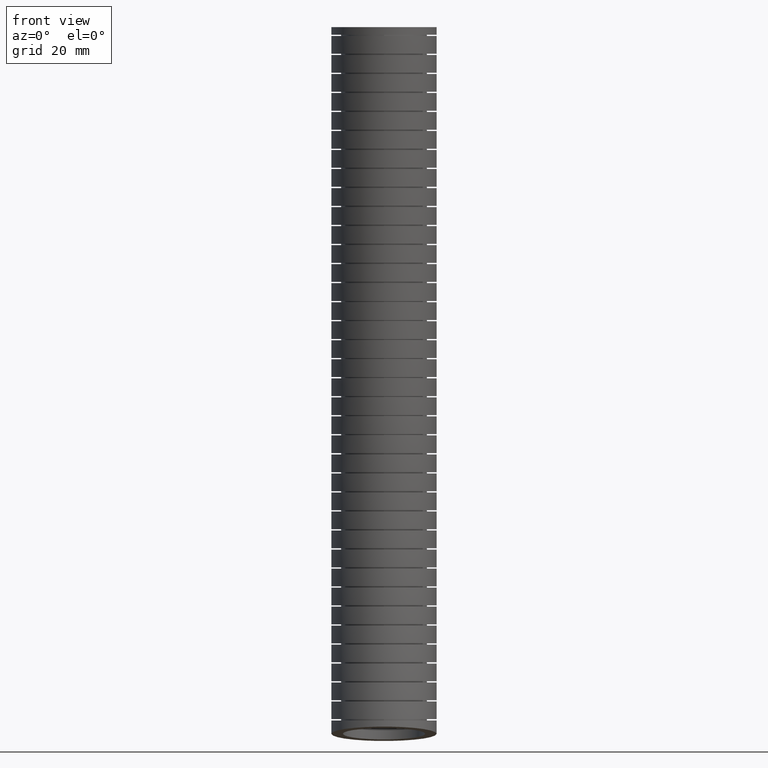
[diagram: clean part render]
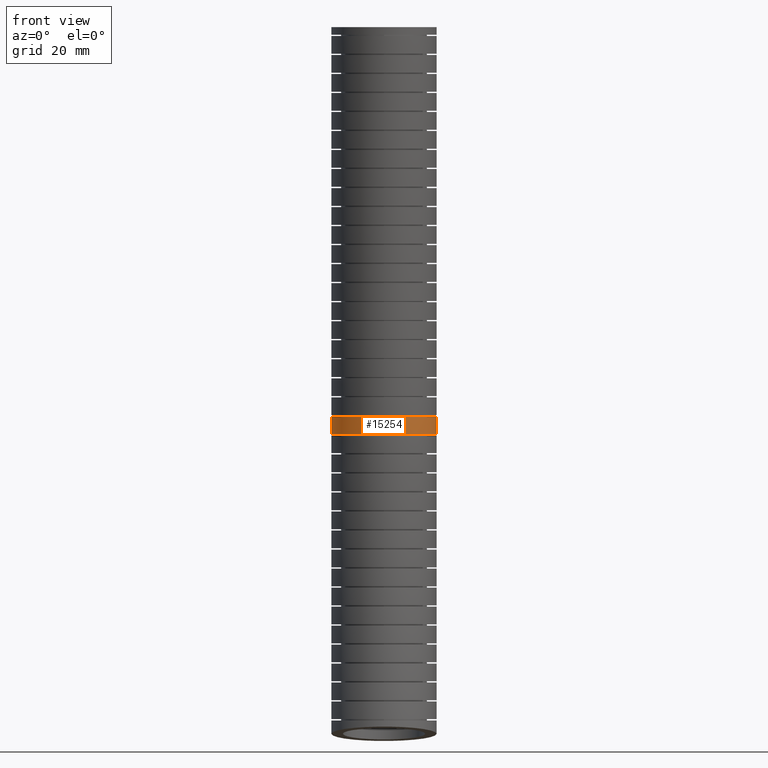
[diagram: same view with one face highlighted and labeled with its STEP entity id]
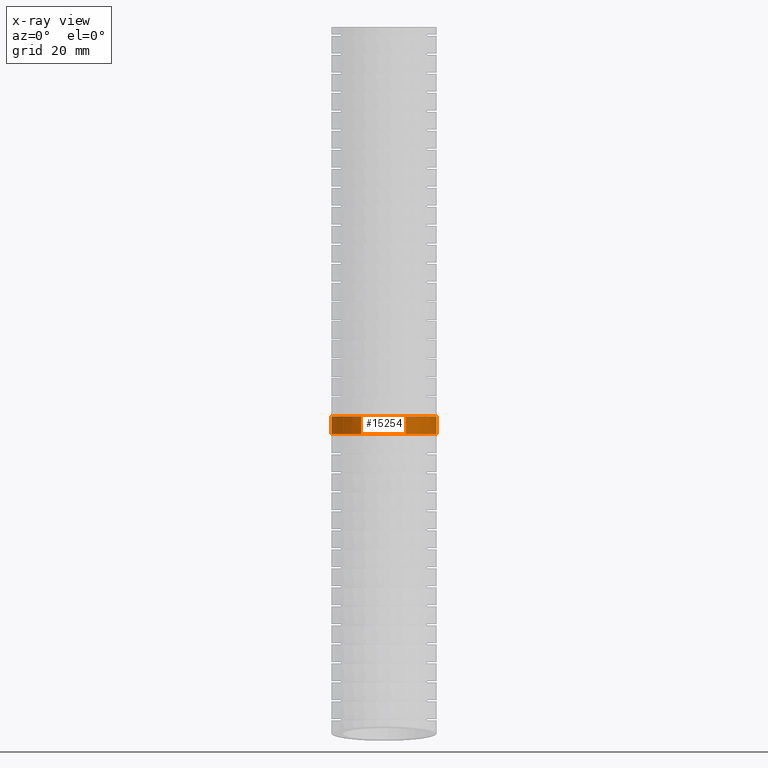
[diagram: x-ray of the same camera — body ghosted, the highlighted face saturated]
A machine part, front view. The second image highlights one B-rep face of the part: STEP entity #15254.
The next image is the same camera in x-ray: the body ghosted, the highlighted face saturated — about 0% of this face is hidden behind the body in this view.
In plain terms, the highlighted face is a freeform B-spline surface patch.
Its self-contained STEP definition (entity closure, byte-faithful):
#640 = EDGE_CURVE ( 'NONE', #646, #647, #2568, .T. ) ;
#645 = ORIENTED_EDGE ( 'NONE', *, *, #15370, .T. ) ;
#646 = VERTEX_POINT ( 'NONE', #2691 ) ;
#647 = VERTEX_POINT ( 'NONE', #2700 ) ;
#2047 = CARTESIAN_POINT ( 'NONE',  ( 0.1330802492527675100, -0.3029395892548170100, -3.068435231609830000 ) ) ;
#2049 = CARTESIAN_POINT ( 'NONE',  ( 0.1837244516612469300, -0.2820469987927504700, -3.068435231609829100 ) ) ;
#2050 = CARTESIAN_POINT ( 'NONE',  ( 0.2076254065518568200, -0.2692801823640682000, -3.068435231609828700 ) ) ;
#2149 = ORIENTED_EDGE ( 'NONE', *, *, #640, .T. ) ;
#2534 = CARTESIAN_POINT ( 'NONE',  ( 0.2413661071648197900, -0.2468206840582521700, -3.068435231609829100 ) ) ;
#2536 = CARTESIAN_POINT ( 'NONE',  ( 0.2522624476290152300, -0.2387769526700455100, -3.068435231609826500 ) ) ;
#2538 = CARTESIAN_POINT ( 'NONE',  ( 0.2733381939563606600, -0.2215498870752172500, -3.068435231609826500 ) ) ;
#2539 = CARTESIAN_POINT ( 'NONE',  ( 0.2835457374649481000, -0.2123291638639151200, -3.068435231609826500 ) ) ;
#2541 = CARTESIAN_POINT ( 'NONE',  ( 0.3124279788709784500, -0.1835302927604853500, -3.068435231609827800 ) ) ;
#2543 = CARTESIAN_POINT ( 'NONE',  ( 0.3295969944154179000, -0.1626710991587972100, -3.068435231609827800 ) ) ;
#2545 = CARTESIAN_POINT ( 'NONE',  ( 0.3522507878713771500, -0.1289154590811915600, -3.068435231609827300 ) ) ;
#2547 = CARTESIAN_POINT ( 'NONE',  ( 0.3593020387909272600, -0.1172112730831917200, -3.068435231609826500 ) ) ;
#2548 = CARTESIAN_POINT ( 'NONE',  ( 0.3722334024554254100, -0.09311053383704802300, -3.068435231609826000 ) ) ;
#2550 = CARTESIAN_POINT ( 'NONE',  ( 0.3780534770481490100, -0.08083543163736398000, -3.068435231609827800 ) ) ;
#2552 = CARTESIAN_POINT ( 'NONE',  ( 0.3936376879701454800, -0.04335709456232861300, -3.068435231609829100 ) ) ;
#2554 = CARTESIAN_POINT ( 'NONE',  ( 0.4015435704669486600, -0.01750701103627695000, -3.068435231609827300 ) ) ;
#2556 = CARTESIAN_POINT ( 'NONE',  ( 0.4095892118476546200, 0.02259546352245408000, -3.068435231609827300 ) ) ;
#2558 = CARTESIAN_POINT ( 'NONE',  ( 0.4116229635089063700, 0.03618338223433939500, -3.068435231609823800 ) ) ;
#2560 = CARTESIAN_POINT ( 'NONE',  ( 0.4143218879108952500, 0.06335964641981034500, -3.068435231609825600 ) ) ;
#2561 = CARTESIAN_POINT ( 'NONE',  ( 0.4149999999999998700, 0.07700373118290888800, -3.068435231417771200 ) ) ;
#2563 = CARTESIAN_POINT ( 'NONE',  ( 0.4150000000000000400, 0.09070433218324203100, -3.068435231417771200 ) ) ;
#2568 = B_SPLINE_CURVE_WITH_KNOTS ( 'NONE', 3,
 ( #2563, #2561, #2560, #2558, #2556, #2554, #2552, #2550, #2548, #2547, #2545, #2543, #2541, #2539, #2538, #2536, #2534, #2050, #2049, #2047, #2684, #2682, #2680, #2678, #2677, #2675, #2674, #2672, #2670, #2668, #2667, #2665, #2664, #2663, #2661, #2659, #2657, #2655, #2654, #2652, #2650, #2648, #2646, #2645, #2643, #2641, #2640, #2639, #2637 ),
 .UNSPECIFIED., .F., .F.,
 ( 4, 2, 2, 2, 2, 2, 2, 2, 2, 2, 2, 2, 2, 2, 2, 2, 2, 2, 1, 2, 2, 2, 2, 2, 4 ),
 ( 0.0000000000000000000, 0.001040378741193470300, 0.002080757482386940600, 0.004161514964773882100, 0.005201893705967353100, 0.006242272447160824100, 0.008323029929547764300, 0.009363408670741235300, 0.01040378741193470500, 0.01248454489432164800, 0.01456530237670858800, 0.01560568111790205900, 0.01664605985909552900, 0.01872681734148247100, 0.01976719608267594000, 0.02080757482386940900, 0.02288833230625635100, 0.02392871104744982000, 0.02496908978864329300, 0.02600946852983676200, 0.02704984727103023100, 0.02913060475341717300, 0.03017098349461064300, 0.03121136223580411200, 0.03329211971819105000 ),
 .UNSPECIFIED. ) ;
#2637 = CARTESIAN_POINT ( 'NONE',  ( -0.4150000000000000400, 0.09070433218277164400, -3.068435231609826500 ) ) ;
#2639 = CARTESIAN_POINT ( 'NONE',  ( -0.4149999999999999200, 0.06353501029206740100, -3.068435231609826000 ) ) ;
#2640 = CARTESIAN_POINT ( 'NONE',  ( -0.4123522441244589800, 0.03665197155372243400, -3.068435231609827300 ) ) ;
#2641 = CARTESIAN_POINT ( 'NONE',  ( -0.4044320176750820200, -0.003245653105105445900, -3.068435231609827300 ) ) ;
#2643 = CARTESIAN_POINT ( 'NONE',  ( -0.4011105824868447800, -0.01653208127891582800, -3.068435231609825600 ) ) ;
#2645 = CARTESIAN_POINT ( 'NONE',  ( -0.3931753454785357200, -0.04267512802754117700, -3.068435231609825600 ) ) ;
#2646 = CARTESIAN_POINT ( 'NONE',  ( -0.3885925485572106500, -0.05545301992961530800, -3.068435231609825600 ) ) ;
#2648 = CARTESIAN_POINT ( 'NONE',  ( -0.3730535957146975900, -0.09293204052347083000, -3.068435231609826500 ) ) ;
#2650 = CARTESIAN_POINT ( 'NONE',  ( -0.3603239288974688900, -0.1167866528211487600, -3.068435231609823300 ) ) ;
#2652 = CARTESIAN_POINT ( 'NONE',  ( -0.3375783026742067400, -0.1508258483891877800, -3.068435231609823800 ) ) ;
#2654 = CARTESIAN_POINT ( 'NONE',  ( -0.3293993076850434400, -0.1618406680832771300, -3.068435231609826500 ) ) ;
#2655 = CARTESIAN_POINT ( 'NONE',  ( -0.3121742016726828400, -0.1828063756785877100, -3.068435231609827300 ) ) ;
#2657 = CARTESIAN_POINT ( 'NONE',  ( -0.2940032207975771800, -0.2028306715721994700, -3.068435231609826500 ) ) ;
#2659 = CARTESIAN_POINT ( 'NONE',  ( -0.2739666390967485100, -0.2209981695772013400, -3.068435231609828700 ) ) ;
#2661 = CARTESIAN_POINT ( 'NONE',  ( -0.2529833139437365800, -0.2382233913895517900, -3.068435231609828700 ) ) ;
#2663 = CARTESIAN_POINT ( 'NONE',  ( -0.2419534244319628800, -0.2464058137945091800, -3.068435231609827800 ) ) ;
#2664 = CARTESIAN_POINT ( 'NONE',  ( -0.2079314501390296400, -0.2691227817268244100, -3.068435231609827300 ) ) ;
#2665 = CARTESIAN_POINT ( 'NONE',  ( -0.1840805432861294700, -0.2818470549942366800, -3.068435231609826000 ) ) ;
#2667 = CARTESIAN_POINT ( 'NONE',  ( -0.1465922815607620100, -0.2973908251390161000, -3.068435231609825600 ) ) ;
#2668 = CARTESIAN_POINT ( 'NONE',  ( -0.1338088353014851600, -0.3019774159156297100, -3.068435231609825600 ) ) ;
#2670 = CARTESIAN_POINT ( 'NONE',  ( -0.1076490026866928600, -0.3099235565297001100, -3.068435231609825100 ) ) ;
#2672 = CARTESIAN_POINT ( 'NONE',  ( -0.09438316581879437100, -0.3132439704936175200, -3.068435231609827800 ) ) ;
#2674 = CARTESIAN_POINT ( 'NONE',  ( -0.05450538128426429100, -0.3211810795998162300, -3.068435231609828200 ) ) ;
#2675 = CARTESIAN_POINT ( 'NONE',  ( -0.02762355965686172700, -0.3238518982729181000, -3.068435231609826500 ) ) ;
#2677 = CARTESIAN_POINT ( 'NONE',  ( 0.01314773141406262400, -0.3238953463423052700, -3.068435231609825600 ) ) ;
#2678 = CARTESIAN_POINT ( 'NONE',  ( 0.02688461339307669400, -0.3232337981930267200, -3.068435231609827800 ) ) ;
#2680 = CARTESIAN_POINT ( 'NONE',  ( 0.05398677263137857700, -0.3205831777550127200, -3.068435231609826500 ) ) ;
#2682 = CARTESIAN_POINT ( 'NONE',  ( 0.06738799586837618300, -0.3186015790338492800, -3.068435231609826500 ) ) ;
#2684 = CARTESIAN_POINT ( 'NONE',  ( 0.1071522739350972100, -0.3107324892237667300, -3.068435231609827800 ) ) ;
#2691 = CARTESIAN_POINT ( 'NONE',  ( 0.4150000000000000400, 0.09070433218324203100, -3.068435231417771200 ) ) ;
#2700 = CARTESIAN_POINT ( 'NONE',  ( -0.4150000000000000400, 0.09070433218277164400, -3.068435231609826500 ) ) ;
#15253 = EDGE_LOOP ( 'NONE', ( #2149, #645, #15330, #15271 ) ) ;
#15254 = ADVANCED_FACE ( 'NONE', ( #16274 ), #16314, .T. ) ;
#15271 = ORIENTED_EDGE ( 'NONE', *, *, #15272, .F. ) ;
#15272 = EDGE_CURVE ( 'NONE', #646, #15273, #16554, .T. ) ;
#15273 = VERTEX_POINT ( 'NONE', #16553 ) ;
#15318 = VERTEX_POINT ( 'NONE', #16625 ) ;
#15330 = ORIENTED_EDGE ( 'NONE', *, *, #15456, .T. ) ;
#15370 = EDGE_CURVE ( 'NONE', #647, #15318, #16650, .T. ) ;
#15456 = EDGE_CURVE ( 'NONE', #15318, #15273, #16643, .T. ) ;
#16274 = FACE_OUTER_BOUND ( 'NONE', #15253, .T. ) ;
#16314 =( BOUNDED_SURFACE ( )  B_SPLINE_SURFACE ( 3, 3, ( 
 ( #16353, #16352, #16351, #16350, #16349, #16348 ),
 ( #16347, #16346, #16345, #16344, #16343, #16342 ),
 ( #16341, #16340, #16339, #16338, #16337, #16336 ),
 ( #16335, #16334, #16333, #16332, #16331, #16330 ),
 ( #16329, #16328, #16327, #16326, #16325, #16324 ),
 ( #16323, #16387, #16386, #16385, #16384, #16383 ),
 ( #16382, #16381, #16380, #16379, #16378, #16377 ) ),
 .UNSPECIFIED., .F., .F., .F. ) 
 B_SPLINE_SURFACE_WITH_KNOTS ( ( 4, 3, 4 ),
 ( 4, 1, 1, 4 ),
 ( 0.0000000000000000000, 0.5000000000000000000, 1.000000000000000000 ),
 ( 0.0000000000000000000, 0.5600000000000000500, 0.8973141982067990300, 1.000000000000000000 ),
 .UNSPECIFIED. ) 
 GEOMETRIC_REPRESENTATION_ITEM ( )  RATIONAL_B_SPLINE_SURFACE ( (
 ( 1.000000000000000000, 1.000000000000000000, 1.000000000000000000, 1.000000000000000000, 1.000000000000000000, 1.000000000000000000),
 ( 0.3333333333333333100, 0.3333333333333333100, 0.3333333333333333100, 0.3333333333333333100, 0.3333333333333332600, 0.3333333333333333100),
 ( 0.3333333333333333100, 0.3333333333333333100, 0.3333333333333333100, 0.3333333333333333100, 0.3333333333333332600, 0.3333333333333333100),
 ( 1.000000000000000000, 1.000000000000000000, 1.000000000000000000, 1.000000000000000000, 1.000000000000000000, 1.000000000000000000),
 ( 0.3333333333333333100, 0.3333333333333333100, 0.3333333333333333100, 0.3333333333333333100, 0.3333333333333332600, 0.3333333333333333100),
 ( 0.3333333333333333100, 0.3333333333333333100, 0.3333333333333333100, 0.3333333333333333100, 0.3333333333333332600, 0.3333333333333333100),
 ( 1.000000000000000000, 1.000000000000000000, 1.000000000000000000, 1.000000000000000000, 1.000000000000000000, 1.000000000000000000) ) ) 
 REPRESENTATION_ITEM ( '' )  SURFACE ( )  );
#16323 = CARTESIAN_POINT ( 'NONE',  ( 0.4150000000000000900, 0.8300000000000001800, 0.0000000000000000000 ) ) ;
#16324 = CARTESIAN_POINT ( 'NONE',  ( -0.4149999999999999200, 0.7922141346493595200, -5.683419208173947200 ) ) ;
#16325 = CARTESIAN_POINT ( 'NONE',  ( -0.4150000000000000400, 0.8104118928973711400, -5.486989566509566700 ) ) ;
#16326 = CARTESIAN_POINT ( 'NONE',  ( -0.4149999999999999200, 0.8883877521622221000, -4.645305119166129900 ) ) ;
#16327 = CARTESIAN_POINT ( 'NONE',  ( -0.4149999999999999200, 0.9528682252578860600, -2.732677208711230800 ) ) ;
#16328 = CARTESIAN_POINT ( 'NONE',  ( -0.4149999999999999200, 0.8772143935941071300, -1.050081882658727000 ) ) ;
#16329 = CARTESIAN_POINT ( 'NONE',  ( -0.4150000000000000400, 0.8300000000000001800, 0.0000000000000000000 ) ) ;
#16330 = CARTESIAN_POINT ( 'NONE',  ( -0.4150000000000000400, -0.02999999999999996800, -5.569999999999998500 ) ) ;
#16331 = CARTESIAN_POINT ( 'NONE',  ( -0.4150000000000000900, -0.01243844818931298000, -5.380037381098891700 ) ) ;
#16332 = CARTESIAN_POINT ( 'NONE',  ( -0.4150000000000000900, 0.06281132015026594200, -4.566063580857106200 ) ) ;
#16333 = CARTESIAN_POINT ( 'NONE',  ( -0.4149999999999999200, 0.1218071073635320100, -2.711443563840852700 ) ) ;
#16334 = CARTESIAN_POINT ( 'NONE',  ( -0.4150000000000000900, 0.04680663936954139500, -1.041922460934817000 ) ) ;
#16335 = CARTESIAN_POINT ( 'NONE',  ( -0.4150000000000000900, 5.082284216461516900E-017, 0.0000000000000000000 ) ) ;
#16336 = CARTESIAN_POINT ( 'NONE',  ( -0.4150000000000000900, -0.8522141346493592500, -5.456580791826050700 ) ) ;
#16337 = CARTESIAN_POINT ( 'NONE',  ( -0.4150000000000002000, -0.8352887892759974800, -5.273085195688222100 ) ) ;
#16338 = CARTESIAN_POINT ( 'NONE',  ( -0.4150000000000000900, -0.7627651118616902700, -4.486822042548080700 ) ) ;
#16339 = CARTESIAN_POINT ( 'NONE',  ( -0.4150000000000000400, -0.7092540105308221500, -2.690209918970475100 ) ) ;
#16340 = CARTESIAN_POINT ( 'NONE',  ( -0.4150000000000000900, -0.7836011148550242600, -1.033763039210906500 ) ) ;
#16341 = CARTESIAN_POINT ( 'NONE',  ( -0.4150000000000000900, -0.8300000000000001800, 0.0000000000000000000 ) ) ;
#16342 = CARTESIAN_POINT ( 'NONE',  ( 0.4150000000000000400, -0.8522141346493592500, -5.456580791826050700 ) ) ;
#16343 = CARTESIAN_POINT ( 'NONE',  ( 0.4150000000000002000, -0.8352887892759974800, -5.273085195688222100 ) ) ;
#16344 = CARTESIAN_POINT ( 'NONE',  ( 0.4150000000000000400, -0.7627651118616902700, -4.486822042548080700 ) ) ;
#16345 = CARTESIAN_POINT ( 'NONE',  ( 0.4150000000000000400, -0.7092540105308221500, -2.690209918970475100 ) ) ;
#16346 = CARTESIAN_POINT ( 'NONE',  ( 0.4150000000000000900, -0.7836011148550242600, -1.033763039210906500 ) ) ;
#16347 = CARTESIAN_POINT ( 'NONE',  ( 0.4150000000000000900, -0.8300000000000001800, 0.0000000000000000000 ) ) ;
#16348 = CARTESIAN_POINT ( 'NONE',  ( 0.4150000000000000400, -0.03000000000000001600, -5.569999999999998500 ) ) ;
#16349 = CARTESIAN_POINT ( 'NONE',  ( 0.4150000000000000900, -0.01243844818931303500, -5.380037381098891700 ) ) ;
#16350 = CARTESIAN_POINT ( 'NONE',  ( 0.4150000000000000900, 0.06281132015026588700, -4.566063580857106200 ) ) ;
#16351 = CARTESIAN_POINT ( 'NONE',  ( 0.4149999999999999200, 0.1218071073635319700, -2.711443563840852700 ) ) ;
#16352 = CARTESIAN_POINT ( 'NONE',  ( 0.4150000000000000900, 0.04680663936954134600, -1.041922460934817000 ) ) ;
#16353 = CARTESIAN_POINT ( 'NONE',  ( 0.4150000000000000900, 0.0000000000000000000, 0.0000000000000000000 ) ) ;
#16377 = CARTESIAN_POINT ( 'NONE',  ( 0.4150000000000000400, -0.03000000000000001600, -5.569999999999998500 ) ) ;
#16378 = CARTESIAN_POINT ( 'NONE',  ( 0.4150000000000000900, -0.01243844818931303500, -5.380037381098891700 ) ) ;
#16379 = CARTESIAN_POINT ( 'NONE',  ( 0.4150000000000000900, 0.06281132015026588700, -4.566063580857106200 ) ) ;
#16380 = CARTESIAN_POINT ( 'NONE',  ( 0.4149999999999999200, 0.1218071073635319700, -2.711443563840852700 ) ) ;
#16381 = CARTESIAN_POINT ( 'NONE',  ( 0.4150000000000000900, 0.04680663936954134600, -1.041922460934817000 ) ) ;
#16382 = CARTESIAN_POINT ( 'NONE',  ( 0.4150000000000000900, 0.0000000000000000000, 0.0000000000000000000 ) ) ;
#16383 = CARTESIAN_POINT ( 'NONE',  ( 0.4150000000000000400, 0.7922141346493595200, -5.683419208173947200 ) ) ;
#16384 = CARTESIAN_POINT ( 'NONE',  ( 0.4150000000000002000, 0.8104118928973711400, -5.486989566509566700 ) ) ;
#16385 = CARTESIAN_POINT ( 'NONE',  ( 0.4150000000000000400, 0.8883877521622221000, -4.645305119166129900 ) ) ;
#16386 = CARTESIAN_POINT ( 'NONE',  ( 0.4150000000000000400, 0.9528682252578860600, -2.732677208711230800 ) ) ;
#16387 = CARTESIAN_POINT ( 'NONE',  ( 0.4150000000000000900, 0.8772143935941071300, -1.050081882658727000 ) ) ;
#16553 = CARTESIAN_POINT ( 'NONE',  ( 0.4150000000000000900, 0.09023260069168807800, -3.208434248761313300 ) ) ;
#16554 = B_SPLINE_CURVE_WITH_KNOTS ( 'NONE', 3,
 ( #16632, #16631, #16630, #16629, #16628 ),
 .UNSPECIFIED., .F., .F.,
 ( 4, 1, 4 ),
 ( 0.5500820456786192900, 0.5600000000000000500, 0.5752144025297359900 ),
 .UNSPECIFIED. ) ;
#16625 = CARTESIAN_POINT ( 'NONE',  ( -0.4150000000000000400, 0.09023260069370794800, -3.208434248579250100 ) ) ;
#16628 = CARTESIAN_POINT ( 'NONE',  ( 0.4150000000000000900, 0.09023260069168807800, -3.208434248761313300 ) ) ;
#16629 = CARTESIAN_POINT ( 'NONE',  ( 0.4150000000000000400, 0.09038929076641019600, -3.180186364628423900 ) ) ;
#16630 = CARTESIAN_POINT ( 'NONE',  ( 0.4150000000000000400, 0.09058571574000290300, -3.133521662186735700 ) ) ;
#16631 = CARTESIAN_POINT ( 'NONE',  ( 0.4150000000000000400, 0.09068177677903058200, -3.086852767347634300 ) ) ;
#16632 = CARTESIAN_POINT ( 'NONE',  ( 0.4150000000000000400, 0.09070433218324203100, -3.068435231417771200 ) ) ;
#16633 = CARTESIAN_POINT ( 'NONE',  ( -0.3526593792986693600, -0.1287231873330266200, -3.208434248579249200 ) ) ;
#16634 = CARTESIAN_POINT ( 'NONE',  ( -0.3597018044858356100, -0.1169701533302967800, -3.208434248579250100 ) ) ;
#16635 = CARTESIAN_POINT ( 'NONE',  ( -0.3724852163480661400, -0.09305130962682667300, -3.208434248579249200 ) ) ;
#16636 = CARTESIAN_POINT ( 'NONE',  ( -0.3840409701677342000, -0.06861215218029846600, -3.208434248579247900 ) ) ;
#16637 = CARTESIAN_POINT ( 'NONE',  ( -0.3931702871499146400, -0.04314460703178926700, -3.208434248579252700 ) ) ;
#16638 = CARTESIAN_POINT ( 'NONE',  ( -0.4010656678384512700, -0.01715408725241233300, -3.208434248579252700 ) ) ;
#16639 = CARTESIAN_POINT ( 'NONE',  ( -0.4044085035609292800, -0.003821578909843728100, -3.208434248579248700 ) ) ;
#16640 = CARTESIAN_POINT ( 'NONE',  ( -0.4123723302200944500, 0.03626954509264020800, -3.208434248579251000 ) ) ;
#16641 = CARTESIAN_POINT ( 'NONE',  ( -0.4150000000000000900, 0.06316751120281642600, -3.208434248579248300 ) ) ;
#16642 = CARTESIAN_POINT ( 'NONE',  ( -0.4150000000000000400, 0.09023260069370794800, -3.208434248579250100 ) ) ;
#16643 = B_SPLINE_CURVE_WITH_KNOTS ( 'NONE', 3,
 ( #16642, #16641, #16640, #16639, #16638, #16637, #16636, #16635, #16634, #16633, #16710, #16709, #16708, #16707, #16706, #16705, #16704, #16703, #16702, #16701, #16700, #16699, #16698, #16697, #16696, #16695, #16694, #16693, #16692, #16691, #16690, #16689, #16688, #16687, #16686, #16685, #16684, #16683, #16682, #16681, #16680, #16679, #16678, #16677, #16676 ),
 .UNSPECIFIED., .F., .F.,
 ( 4, 2, 2, 1, 2, 2, 2, 2, 2, 2, 2, 2, 2, 2, 2, 2, 2, 2, 2, 2, 2, 2, 4 ),
 ( 0.03293945732616998500, 0.03499766285383396800, 0.03602676561766596200, 0.03705586838149795700, 0.03808497114532995200, 0.03911407390916194600, 0.04117227943682592900, 0.04220138220065791600, 0.04323048496448991100, 0.04528869049215389400, 0.04631779325598588100, 0.04734689601981787600, 0.04940510154748185800, 0.05146330707514583400, 0.05249240983897782200, 0.05352151260280981600, 0.05557971813047379200, 0.05763792365813777400, 0.05969612918580175000, 0.06072523194963373700, 0.06175433471346572500, 0.06381254024112970000, 0.06587074576879369000 ),
 .UNSPECIFIED. ) ;
#16644 = CARTESIAN_POINT ( 'NONE',  ( -0.4150000000000000400, 0.09023260069370794800, -3.208434248579250100 ) ) ;
#16645 = CARTESIAN_POINT ( 'NONE',  ( -0.4150000000000000400, 0.09038929076692116300, -3.180186364507037400 ) ) ;
#16646 = CARTESIAN_POINT ( 'NONE',  ( -0.4150000000000000400, 0.09058571573985843600, -3.133521662190047700 ) ) ;
#16647 = CARTESIAN_POINT ( 'NONE',  ( -0.4150000000000000400, 0.09068177677876707000, -3.086852767475666500 ) ) ;
#16648 = CARTESIAN_POINT ( 'NONE',  ( -0.4150000000000000400, 0.09070433218277164400, -3.068435231609826500 ) ) ;
#16650 = B_SPLINE_CURVE_WITH_KNOTS ( 'NONE', 3,
 ( #16648, #16647, #16646, #16645, #16644 ),
 .UNSPECIFIED., .F., .F.,
 ( 4, 1, 4 ),
 ( 0.5500820457130937100, 0.5600000000000000500, 0.5752144024970482500 ),
 .UNSPECIFIED. ) ;
#16676 = CARTESIAN_POINT ( 'NONE',  ( 0.4150000000000000900, 0.09023260069168807800, -3.208434248761313300 ) ) ;
#16677 = CARTESIAN_POINT ( 'NONE',  ( 0.4150000000000000900, 0.06283295708705501100, -3.208434248761313300 ) ) ;
#16678 = CARTESIAN_POINT ( 'NONE',  ( 0.4123072488638439000, 0.03571784390038014500, -3.208434248579250500 ) ) ;
#16679 = CARTESIAN_POINT ( 'NONE',  ( 0.4015572491071871000, -0.01794561389814307300, -3.208434248579251000 ) ) ;
#16680 = CARTESIAN_POINT ( 'NONE',  ( 0.3935932253210483500, -0.04394074481165722400, -3.208434248579250500 ) ) ;
#16681 = CARTESIAN_POINT ( 'NONE',  ( 0.3780273823635270600, -0.08135093113415560500, -3.208434248579250100 ) ) ;
#16682 = CARTESIAN_POINT ( 'NONE',  ( 0.3722266967242904800, -0.09357695585036268600, -3.208434248579248300 ) ) ;
#16683 = CARTESIAN_POINT ( 'NONE',  ( 0.3593781985494804400, -0.1175317665061560900, -3.208434248579248700 ) ) ;
#16684 = CARTESIAN_POINT ( 'NONE',  ( 0.3522876671594581400, -0.1293168033831303400, -3.208434248579250500 ) ) ;
#16685 = CARTESIAN_POINT ( 'NONE',  ( 0.3295296962851516600, -0.1632259670405487900, -3.208434248579251000 ) ) ;
#16686 = CARTESIAN_POINT ( 'NONE',  ( 0.3123394671511119900, -0.1840722174339172500, -3.208434248579250500 ) ) ;
#16687 = CARTESIAN_POINT ( 'NONE',  ( 0.2739912800648379200, -0.2223049649004710500, -3.208434248579251000 ) ) ;
#16688 = CARTESIAN_POINT ( 'NONE',  ( 0.2526087919245115200, -0.2397907620038131600, -3.208434248579250500 ) ) ;
#16689 = CARTESIAN_POINT ( 'NONE',  ( 0.2075214634429037900, -0.2697908097741549300, -3.208434248579251000 ) ) ;
#16690 = CARTESIAN_POINT ( 'NONE',  ( 0.1836794864475622100, -0.2825021731574379200, -3.208434248579250500 ) ) ;
#16691 = CARTESIAN_POINT ( 'NONE',  ( 0.1459392735878631300, -0.2980837345268528800, -3.208434248579250100 ) ) ;
#16692 = CARTESIAN_POINT ( 'NONE',  ( 0.1329823837386226700, -0.3026990287179002800, -3.208434248579250500 ) ) ;
#16693 = CARTESIAN_POINT ( 'NONE',  ( 0.1069530304310418000, -0.3105505553734753700, -3.208434248579251400 ) ) ;
#16694 = CARTESIAN_POINT ( 'NONE',  ( 0.09381934546503088700, -0.3138168367925297500, -3.208434248579251000 ) ) ;
#16695 = CARTESIAN_POINT ( 'NONE',  ( 0.05406813289478463300, -0.3216752901163568200, -3.208434248579250500 ) ) ;
#16696 = CARTESIAN_POINT ( 'NONE',  ( 0.02701234255469478800, -0.3243458362550973900, -3.208434248579250500 ) ) ;
#16697 = CARTESIAN_POINT ( 'NONE',  ( -0.02768900817597345600, -0.3243012892867731500, -3.208434248579250500 ) ) ;
#16698 = CARTESIAN_POINT ( 'NONE',  ( -0.05461168649758396000, -0.3216047901033335900, -3.208434248579251000 ) ) ;
#16699 = CARTESIAN_POINT ( 'NONE',  ( -0.09437596031979031400, -0.3136877378919610800, -3.208434248579251000 ) ) ;
#16700 = CARTESIAN_POINT ( 'NONE',  ( -0.1075266719092002600, -0.3103986145336727900, -3.208434248579250100 ) ) ;
#16701 = CARTESIAN_POINT ( 'NONE',  ( -0.1336145747764719600, -0.3024862429374223200, -3.208434248579250100 ) ) ;
#16702 = CARTESIAN_POINT ( 'NONE',  ( -0.1465484456963180900, -0.2978535874130150400, -3.208434248579252700 ) ) ;
#16703 = CARTESIAN_POINT ( 'NONE',  ( -0.1841738871554471100, -0.2822538454524847200, -3.208434248579252700 ) ) ;
#16704 = CARTESIAN_POINT ( 'NONE',  ( -0.2079959351312771500, -0.2695212306953526600, -3.208434248579251000 ) ) ;
#16705 = CARTESIAN_POINT ( 'NONE',  ( -0.2418411491887909900, -0.2469314707633688500, -3.208434248579252700 ) ) ;
#16706 = CARTESIAN_POINT ( 'NONE',  ( -0.2528592313830898600, -0.2387705177927244300, -3.208434248579250100 ) ) ;
#16707 = CARTESIAN_POINT ( 'NONE',  ( -0.2739643026013126000, -0.2214535529828000900, -3.208434248579250500 ) ) ;
#16708 = CARTESIAN_POINT ( 'NONE',  ( -0.2840144209540780800, -0.2123381401075017100, -3.208434248579250500 ) ) ;
#16709 = CARTESIAN_POINT ( 'NONE',  ( -0.3126994872838899700, -0.1836592739505500400, -3.208434248579250500 ) ) ;
#16710 = CARTESIAN_POINT ( 'NONE',  ( -0.3298832042822776900, -0.1627759781569827200, -3.208434248579250500 ) ) ;